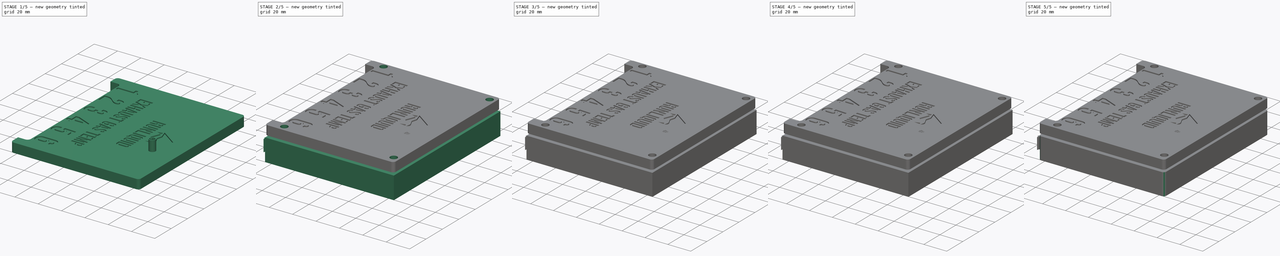
[diagram: build sequence overview — one tinted view per stage of 5, left to right]
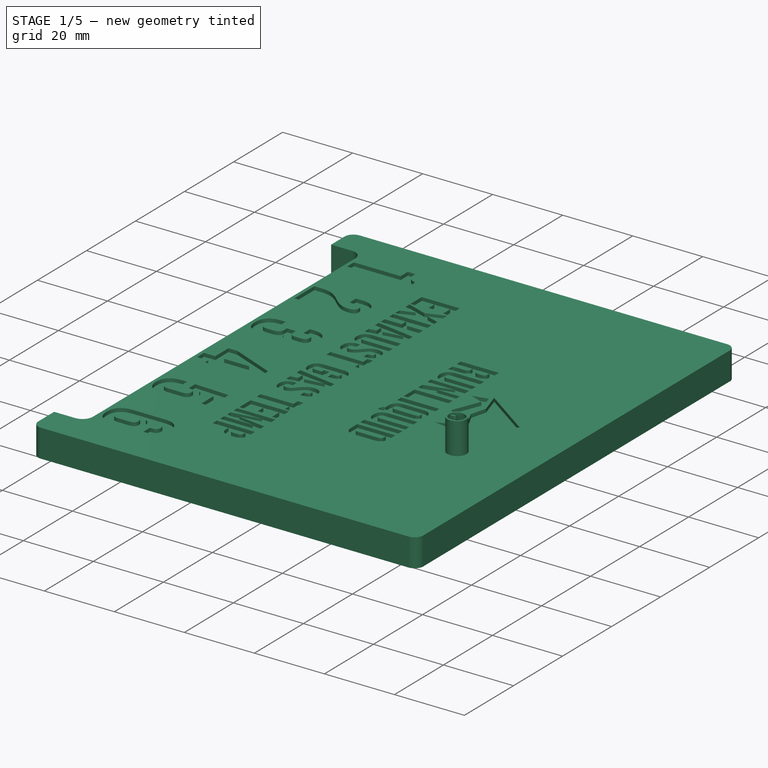
[diagram: stage 1 of 5 — iso view after this stage's code; geometry added in this stage tinted green]
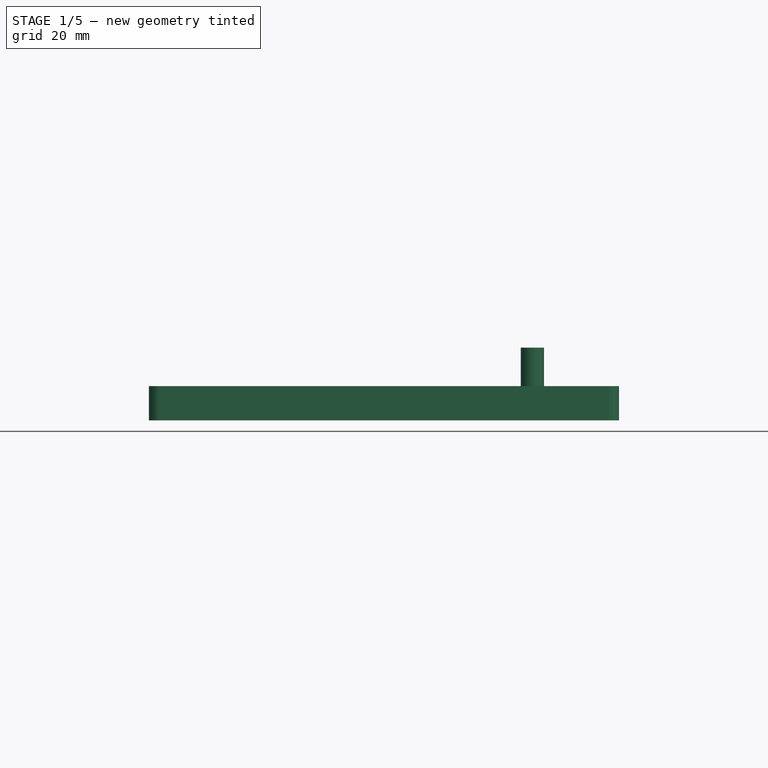
[diagram: stage 1 of 5 — front view after this stage's code; geometry added in this stage tinted green]
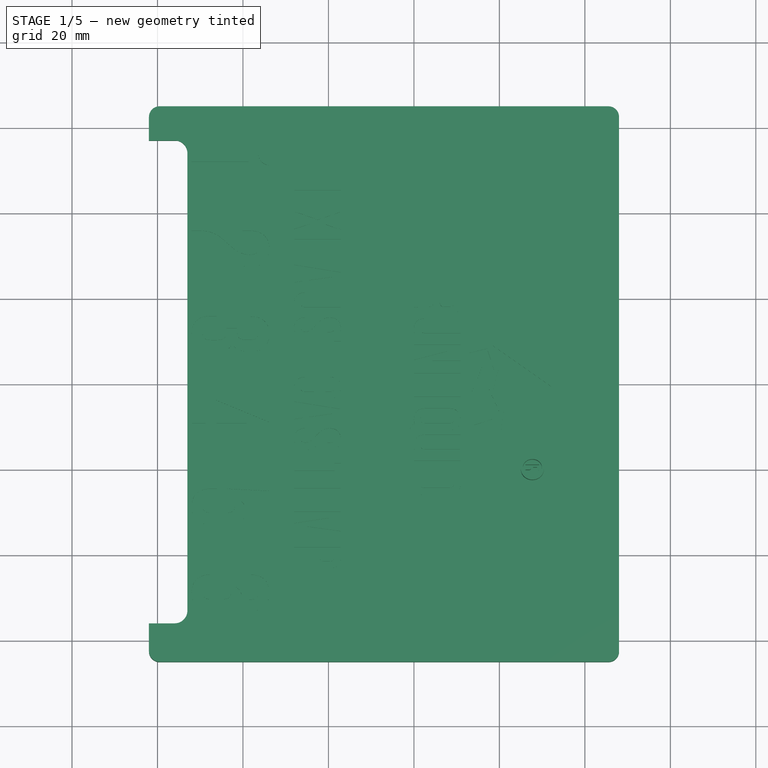
[diagram: stage 1 of 5 — top view after this stage's code; geometry added in this stage tinted green]
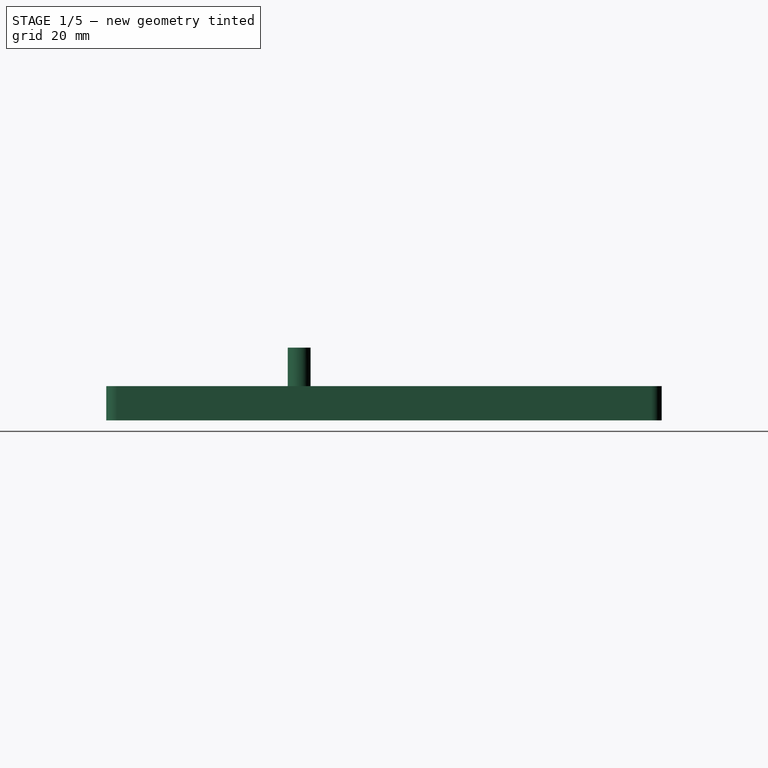
[diagram: stage 1 of 5 — right view after this stage's code; geometry added in this stage tinted green]
FCSTD DOCUMENT  (FreeCAD 0.18R16146 (Git))
Label: Exhaust_Gas_Temperatur_Electrical_Case
License: All rights reserved
LicenseURL: http://en.wikipedia.org/wiki/All_rights_reserved
objects: Part::Cut×33, Part::Cylinder×16, Part::Box×15, Part::Extrusion×5, Part::Part2DObjectPython×4, Part::Fillet×3, Part::MultiFuse×1, Sketcher::SketchObject×1, Part::Feature×1
note: 79 computed .brp shape members not serialized (recipe doc carries the construction recipe); baked Part::Feature solids carry a one-line shape summary decoded from their .brp

FEATURE [Part::Box] Box012  label="Deckel"
  AttacherType = Attacher::AttachEngine3D
  Height = 8
  Length = 110
  Placement = pos=(-2,-5,-2) rot=(0,0,1;0rad)
  Width = 130
FEATURE [Part::Fillet] Fillet001  label="Deckel001"
  Base = -> Box012
  Edges = 4 edges r=2.5: [Edge1,Edge3,Edge5,Edge7]
  Placement = pos=(0,0,21) rot=(0,0,1;0rad)
FEATURE [Part::Box] Box013  label="Deckel_innen"
  AttacherType = Attacher::AttachEngine3D
  Height = 21
  Length = 102
  Placement = pos=(-2,4,3) rot=(0,0,1;0rad)
  Width = 113
FEATURE [Part::Cut] Cut022
  Base = -> Fillet001
  Tool = -> Box013
FEATURE [Part::Part2DObjectPython] ShapeString  # Draft 2D object (typed FeaturePython)
  FontFile = <userpath>/Downloads/bebas_neue/BebasNeue-Regular.ttf
  Placement = pos=(-80,-78,3) rot=(0,0,1;0rad)
  Size = 10
  String = 123456
  Tracking = 10
FEATURE [Part::Extrusion] Extrude
  Base = -> ShapeString
  Dir = (0,0,1)
  DirMode = 2
  FaceMakerClass = Part::FaceMakerBullseye
  LengthFwd = 5
  LengthRev = 0
  Placement = pos=(86,37,23) rot=(0,0,-1;1.5708rad)
  Solid = false
  Symmetric = false
FEATURE [Part::Cut] Cut023
  Base = -> Cut022
  Tool = -> Extrude
FEATURE [Part::Part2DObjectPython] ShapeString001  # Draft 2D object (typed FeaturePython)
  FontFile = <userpath>/Downloads/bebas_neue/BebasNeue-Regular.ttf
  Placement = pos=(-94,4,0) rot=(0,0,1;0rad)
  Size = 6
  String = RUNLIQUID
  Tracking = 0
FEATURE [Part::Extrusion] Extrude001
  Base = -> ShapeString001
  Dir = (0,0,1)
  DirMode = 2
  FaceMakerClass = Part::FaceMakerBullseye
  LengthFwd = 10
  LengthRev = 0
  Placement = pos=(56,-12,26) rot=(0,0,-1;1.5708rad)
  Solid = false
  Symmetric = false
FEATURE [Part::Part2DObjectPython] ShapeString002  # Draft 2D object (typed FeaturePython)
  FontFile = <userpath>/Downloads/bebas_neue/BebasNeue-Regular.ttf
  Placement = pos=(-94,4,0) rot=(0,0,1;0rad)
  Size = 6
  String = EXHAUST GAS TEMP 
  Tracking = 0
FEATURE [Part::Extrusion] Extrude002
  Base = -> ShapeString002
  Dir = (0,0,1)
  DirMode = 2
  FaceMakerClass = Part::FaceMakerBullseye
  LengthFwd = 10
  LengthRev = 0
  Placement = pos=(28,12,26) rot=(0,0,-1;1.5708rad)
  Solid = false
  Symmetric = false
FEATURE [Part::Box] Box014  label="Würfel"
  AttacherType = Attacher::AttachEngine3D
  Height = 10
  Length = 10
  Placement = pos=(-3,4,18) rot=(0,0,1;0rad)
  Width = 113
FEATURE [Part::Fillet] Fillet002
  Base = -> Box014
  Edges = 2 edges r=3: [Edge5,Edge7]
FEATURE [Part::Cut] Cut024
  Base = -> Cut023
  Tool = -> Fillet002
FEATURE [Part::Cut] Cut025
  Base = -> Cut024
  Tool = -> Extrude002
FEATURE [Part::Cut] Cut026
  Base = -> Cut025
  Tool = -> Extrude001
FEATURE [Part::Feature] Extrude004
  Placement = pos=(82.2483,59.4023,16) rot=(0,0,1;4.71239rad)
  shape: bbox 19.3 x 20 x 20 mm, 20 faces, 2 solids (baked)
FEATURE [Part::Part2DObjectPython] ShapeString003  # Draft 2D object (typed FeaturePython)
  FontFile = <userpath>/Downloads/bebas_neue/BebasNeue-Regular.ttf
  Placement = pos=(135,133,0) rot=(0,0,1;0rad)
  Size = 3
  String = ®
  Tracking = 0
FEATURE [Part::Cut] Cut027
  Base = -> Cut026
  Tool = -> Extrude004
FEATURE [Part::Extrusion] Extrude005
  Base = -> ShapeString003
  Dir = (0,0,1)
  DirMode = 2
  FaceMakerClass = Part::FaceMakerBullseye
  LengthFwd = 10
  LengthRev = 0
  Placement = pos=(-48,178,26) rot=(0,0,1;4.71239rad)
  Solid = false
  Symmetric = false
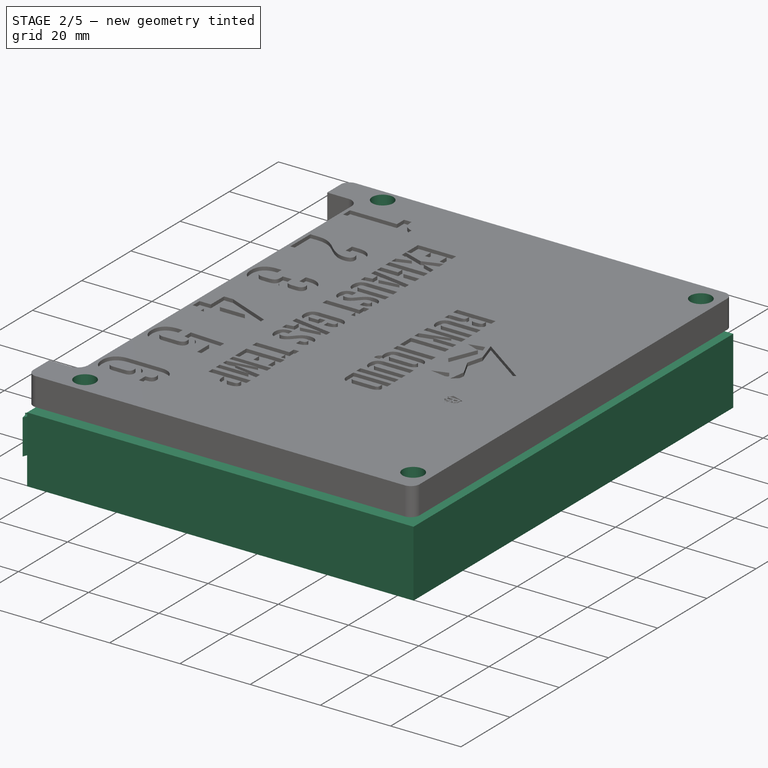
[diagram: stage 2 of 5 — iso view after this stage's code; geometry added in this stage tinted green]
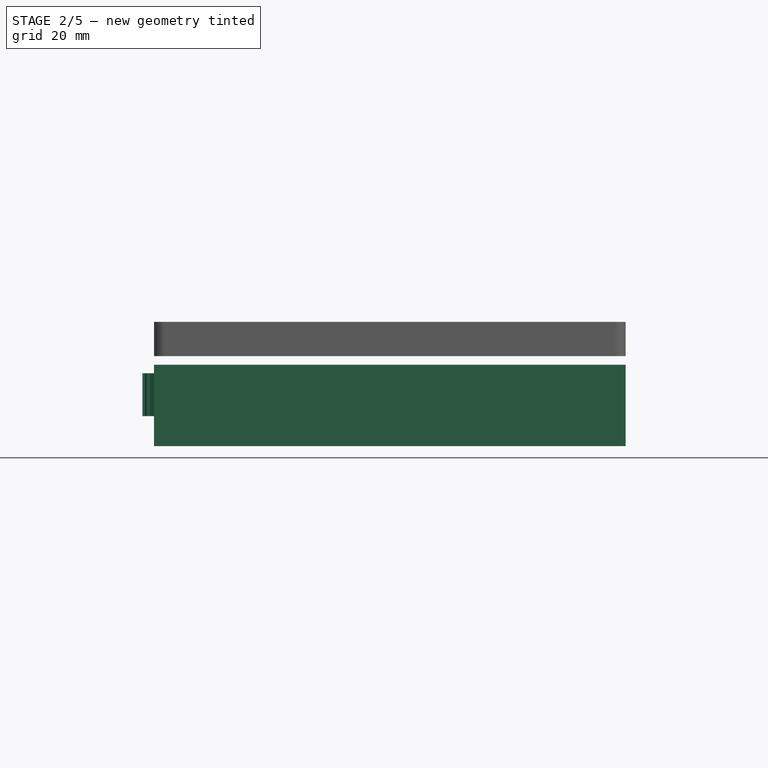
[diagram: stage 2 of 5 — front view after this stage's code; geometry added in this stage tinted green]
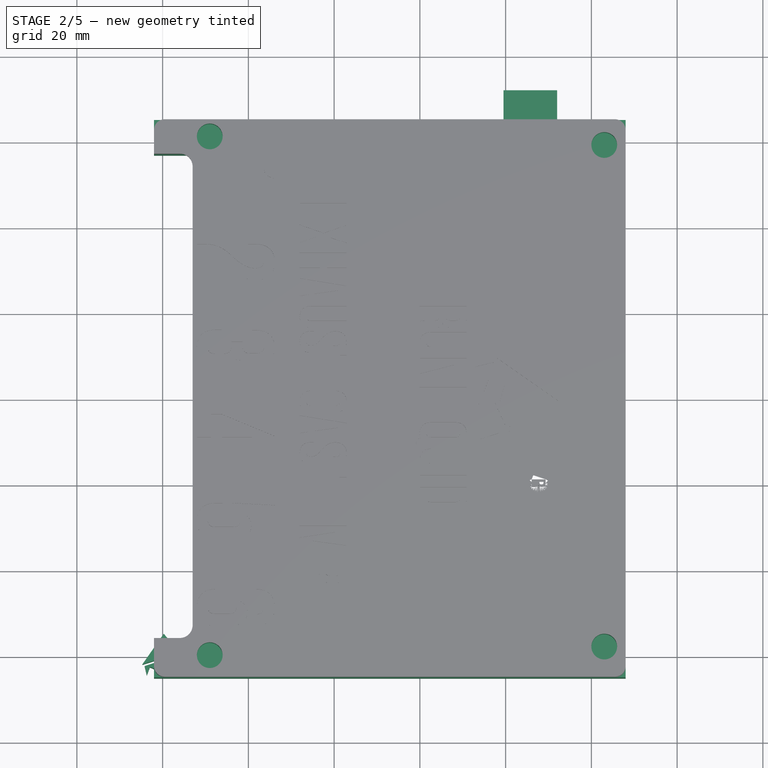
[diagram: stage 2 of 5 — top view after this stage's code; geometry added in this stage tinted green]
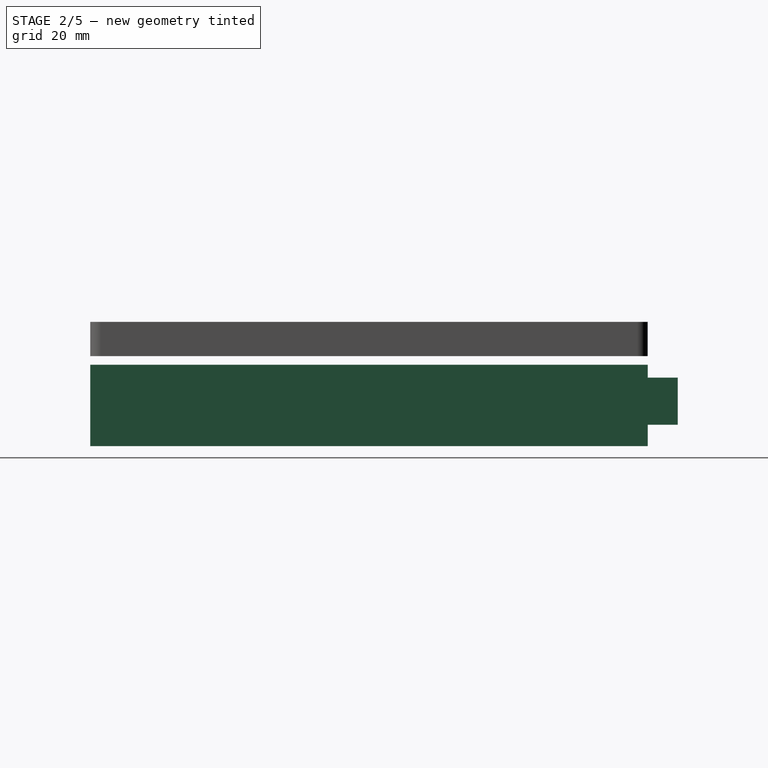
[diagram: stage 2 of 5 — right view after this stage's code; geometry added in this stage tinted green]
FEATURE [Part::Box] Box008  label="Usbport"
  AttacherType = Attacher::AttachEngine3D
  Height = 11
  Length = 20
  Placement = pos=(92,112,3) rot=(0,0,1;1.5708rad)
  Width = 12.5
FEATURE [Part::Box] Box010  label="Wandung"
  AttacherType = Attacher::AttachEngine3D
  Height = 19
  Length = 110
  Placement = pos=(-2,-5,-2) rot=(0,0,1;0rad)
  Width = 130
FEATURE [Part::Box] Box011  label="Wandung001"
  AttacherType = Attacher::AttachEngine3D
  Height = 21
  Length = 102
  Placement = pos=(-2,4,-2) rot=(0,0,1;0rad)
  Width = 113
FEATURE [Part::Cut] Cut019  label="Wandung002"
  Base = -> Box010
  Tool = -> Box011
FEATURE [Sketcher::SketchObject] Sketch011  label="firmenlogo"
  MapMode = 5
  Placement = pos=(0,0,5) rot=(0,0,1;0rad)
  sketch-geometry (16):
    g0: LineSegment StartX=-0.247258 StartY=4.74203 StartZ=0 EndX=-5.2483 EndY=-2.40232 EndZ=0
    g1: LineSegment StartX=-5.2483 StartY=-2.40232 StartZ=0 EndX=-2.23261 EndY=-1.45598 EndZ=0
    g2: LineSegment StartX=-2.23261 StartY=-1.45598 StartZ=0 EndX=0 EndY=-2.04166 EndZ=0
    g3: LineSegment StartX=0 StartY=-2.04166 StartZ=0 EndX=2.47377 EndY=-0.82846 EndZ=0
    g4: LineSegment StartX=2.47377 StartY=-0.82846 StartZ=0 EndX=4.75375 EndY=-1.16314 EndZ=0
    g5: LineSegment StartX=4.75375 StartY=-1.16314 StartZ=0 EndX=-0.247258 EndY=4.74203 EndZ=0
    g6: LineSegment StartX=-4.70084 StartY=-2.79468 StartZ=0 EndX=-2.29536 EndY=-1.99982 EndZ=0
    g7: LineSegment StartX=-2.29536 StartY=-1.99982 StartZ=0 EndX=0 EndY=-2.60643 EndZ=0
    g8: LineSegment StartX=0 StartY=-2.60643 StartZ=0 EndX=2.59927 EndY=-1.39322 EndZ=0
    g9: LineSegment StartX=2.59927 StartY=-1.39322 StartZ=0 EndX=4.62825 EndY=-1.68607 EndZ=0
    g10: LineSegment StartX=4.62825 StartY=-1.68607 StartZ=0 EndX=4.23082 EndY=-4.2798 EndZ=0
    g11: LineSegment StartX=4.23082 StartY=-4.2798 StartZ=0 EndX=3.54055 EndY=-2.14625 EndZ=0
    g12: LineSegment StartX=3.54055 StartY=-2.14625 StartZ=0 EndX=0.340213 EndY=-4.55173 EndZ=0
    g13: LineSegment StartX=0.340213 StartY=-4.55173 StartZ=0 EndX=-3.48764 EndY=-3.00385 EndZ=0
    g14: LineSegment StartX=-3.48764 StartY=-3.00385 StartZ=0 EndX=-4.19883 EndY=-4.90732 EndZ=0
    g15: LineSegment StartX=-4.19883 StartY=-4.90732 StartZ=0 EndX=-4.70084 EndY=-2.79468 EndZ=0
  constraints (18):
    c: Coincident(g1,g0)
    c: Coincident(g2,g1)
    c: PointOnObject(g2,g-2)
    c: Coincident(g3,g2)
    c: Coincident(g4,g3)
    c: Coincident(g5,g4)
    c: Coincident(g5,g0)
    c: Coincident(g7,g6)
    c: PointOnObject(g7,g-2)
    c: Coincident(g8,g7)
    c: Coincident(g9,g8)
    c: Coincident(g10,g9)
    c: Coincident(g11,g10)
    c: Coincident(g12,g11)
    c: Coincident(g13,g12)
    c: Coincident(g14,g13)
    c: Coincident(g15,g14)
    c: Coincident(g15,g6)
FEATURE [Part::Extrusion] Extrude003
  Base = -> Sketch011
  Dir = (0,0,1)
  DirMode = 2
  FaceMakerClass = Part::FaceMakerBullseye
  LengthFwd = 10
  LengthRev = 0
  Placement = pos=(0.52013,0.459354,0) rot=(0,0,1;0rad)
  Solid = true
  Symmetric = false
FEATURE [Part::Cylinder] Cylinder012  label="Zylinder012"
  Angle = 360
  AttacherType = Attacher::AttachEngine3D
  Height = 50
  Placement = pos=(11,0,0) rot=(0,0,1;0rad)
  Radius = 3
FEATURE [Part::Cylinder] Cylinder013  label="Zylinder013"
  Angle = 360
  AttacherType = Attacher::AttachEngine3D
  Height = 50
  Placement = pos=(11,121,0) rot=(0,0,1;0rad)
  Radius = 3
FEATURE [Part::Cylinder] Cylinder014  label="Zylinder014"
  Angle = 360
  AttacherType = Attacher::AttachEngine3D
  Height = 50
  Placement = pos=(103,119,0) rot=(0,0,1;0rad)
  Radius = 3
FEATURE [Part::Cylinder] Cylinder015  label="Zylinder015"
  Angle = 360
  AttacherType = Attacher::AttachEngine3D
  Height = 50
  Placement = pos=(103,2,0) rot=(0,0,1;0rad)
  Radius = 3
FEATURE [Part::Cut] Cut028
  Base = -> Cut027
  Tool = -> Extrude005
FEATURE [Part::Cut] Cut029
  Base = -> Cut028
  Tool = -> Cylinder012
FEATURE [Part::Cut] Cut030
  Base = -> Cut029
  Tool = -> Cylinder013
FEATURE [Part::Cut] Cut031
  Base = -> Cut030
  Tool = -> Cylinder014
FEATURE [Part::Cut] Cut032
  Base = -> Cut031
  Tool = -> Cylinder015
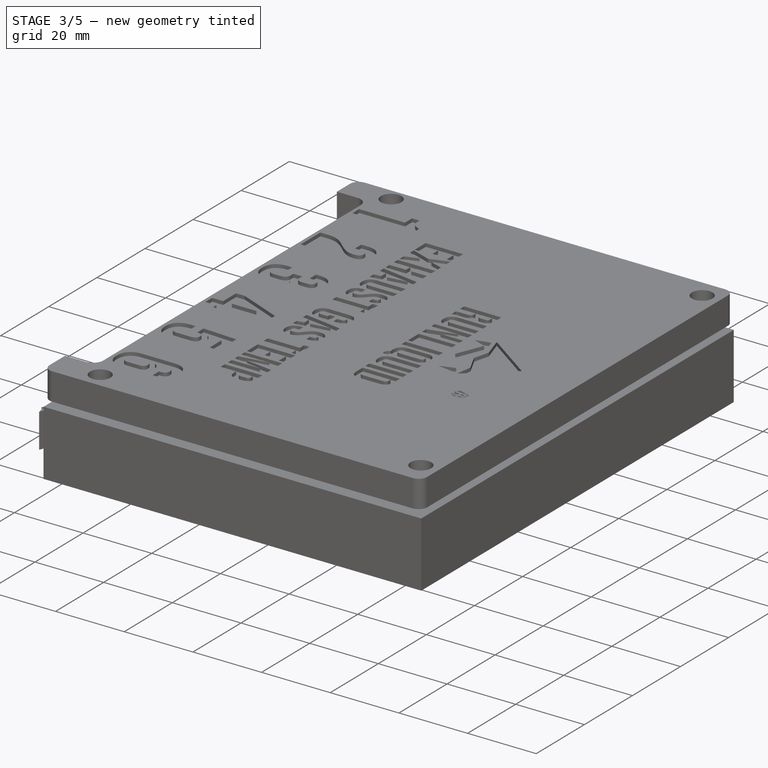
[diagram: stage 3 of 5 — iso view after this stage's code; geometry added in this stage tinted green]
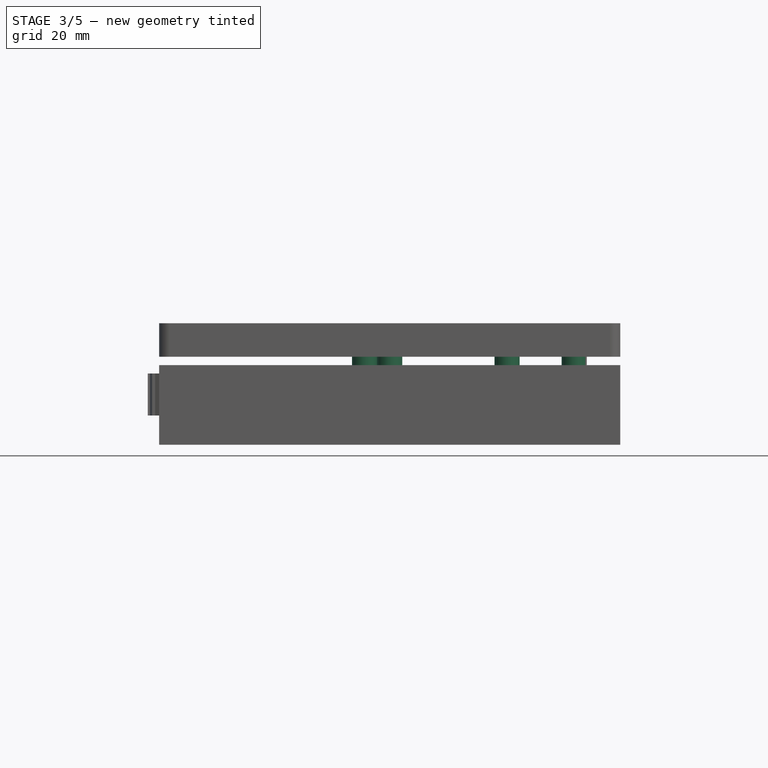
[diagram: stage 3 of 5 — front view after this stage's code; geometry added in this stage tinted green]
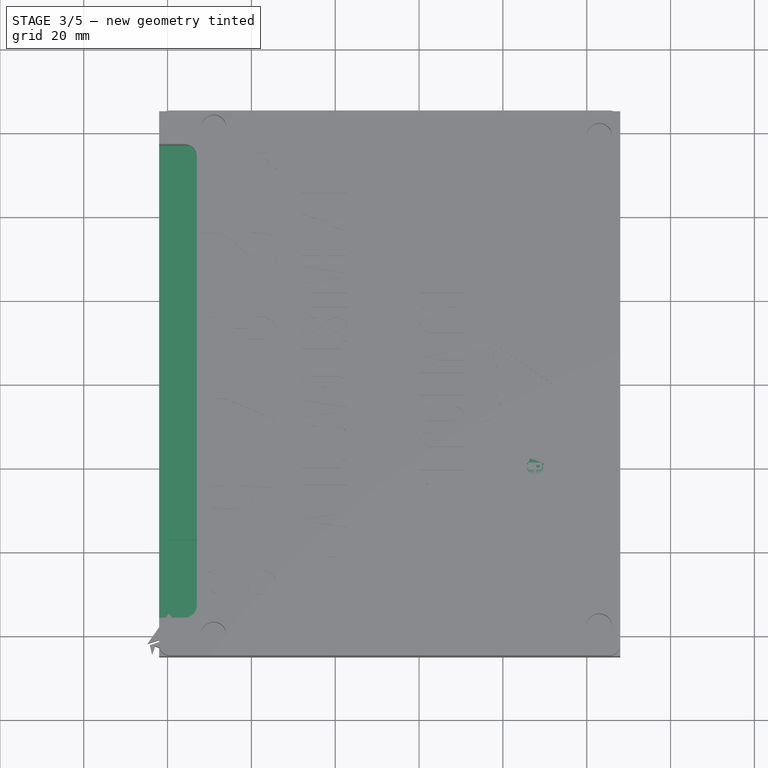
[diagram: stage 3 of 5 — top view after this stage's code; geometry added in this stage tinted green]
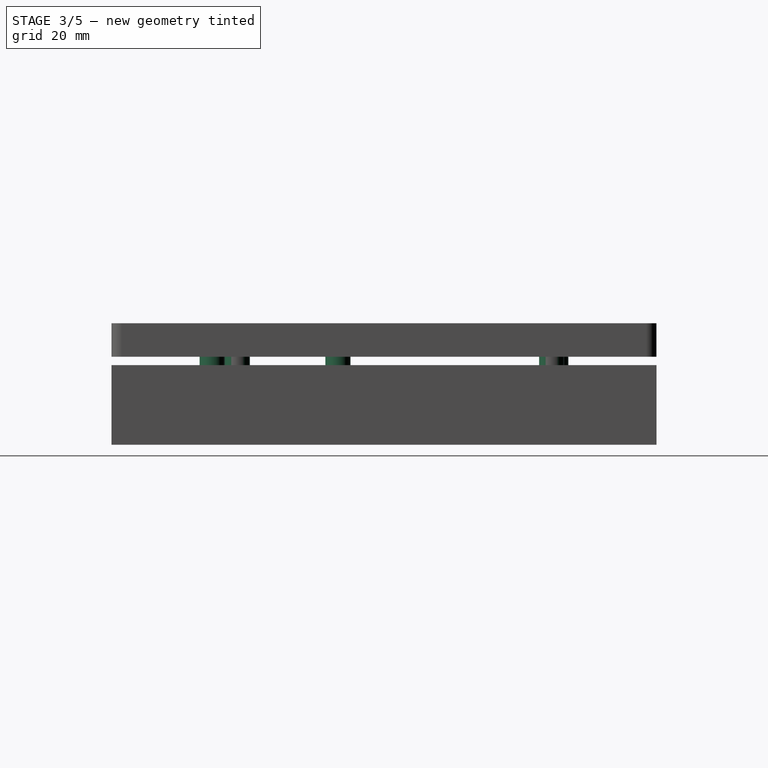
[diagram: stage 3 of 5 — right view after this stage's code; geometry added in this stage tinted green]
FEATURE [Part::Box] Box  label="Boden"
  AttacherType = Attacher::AttachEngine3D
  Height = 4
  Length = 110
  Placement = pos=(-2,-5,-2) rot=(0,0,1;0rad)
  Width = 130
FEATURE [Part::Box] Box001  label="Chip006"
  AttacherType = Attacher::AttachEngine3D
  Height = 10
  Length = 39
  Placement = pos=(0,6,0) rot=(0,0,1;0rad)
  Width = 17
FEATURE [Part::Box] Box007  label="Mega256_Chip"
  AttacherType = Attacher::AttachEngine3D
  Height = 10
  Length = 102
  Placement = pos=(45,115,0) rot=(0,0,-1;1.5708rad)
  Width = 54
FEATURE [Part::Box] Box009  label="DCPort"
  AttacherType = Attacher::AttachEngine3D
  Height = 12
  Length = 20
  Placement = pos=(62,112,3) rot=(0,0,1;1.5708rad)
  Width = 10
FEATURE [Part::Cylinder] Cylinder  label="Zylinder"
  Angle = 360
  AttacherType = Attacher::AttachEngine3D
  Height = 20
  Placement = pos=(17,14,0) rot=(0,0,1;0rad)
  Radius = 3
FEATURE [Part::Cut] Cut
  Base = -> Box001
  Tool = -> Cylinder
FEATURE [Part::Cylinder] Cylinder006  label="Zylinder006"
  Angle = 360
  AttacherType = Attacher::AttachEngine3D
  Height = 20
  Placement = pos=(97,100,0) rot=(0,0,1;0rad)
  Radius = 3
FEATURE [Part::Cylinder] Cylinder007  label="Zylinder007"
  Angle = 360
  AttacherType = Attacher::AttachEngine3D
  Height = 20
  Placement = pos=(47,101,0) rot=(0,0,1;0rad)
  Radius = 3
FEATURE [Part::Cylinder] Cylinder008  label="Zylinder008"
  Angle = 360
  AttacherType = Attacher::AttachEngine3D
  Height = 20
  Placement = pos=(97,25,0) rot=(0,0,1;0rad)
  Radius = 3
FEATURE [Part::Cylinder] Cylinder009  label="Zylinder009"
  Angle = 360
  AttacherType = Attacher::AttachEngine3D
  Height = 20
  Placement = pos=(47,19,0) rot=(0,0,1;0rad)
  Radius = 3
FEATURE [Part::Cylinder] Cylinder010  label="Zylinder010"
  Angle = 360
  AttacherType = Attacher::AttachEngine3D
  Height = 20
  Placement = pos=(53,49,0) rot=(0,0,1;0rad)
  Radius = 3
FEATURE [Part::Cylinder] Cylinder011  label="Zylinder011"
  Angle = 360
  AttacherType = Attacher::AttachEngine3D
  Height = 20
  Placement = pos=(81,49,0) rot=(0,0,1;0rad)
  Radius = 3
FEATURE [Part::Cut] Cut012
  Base = -> Box
  Tool = -> Cut
FEATURE [Part::Cut] Cut020
  Base = -> Cut019
  Tool = -> Box008
FEATURE [Part::Cut] Cut021  label="Wandung003"
  Base = -> Cut020
  Tool = -> Box009
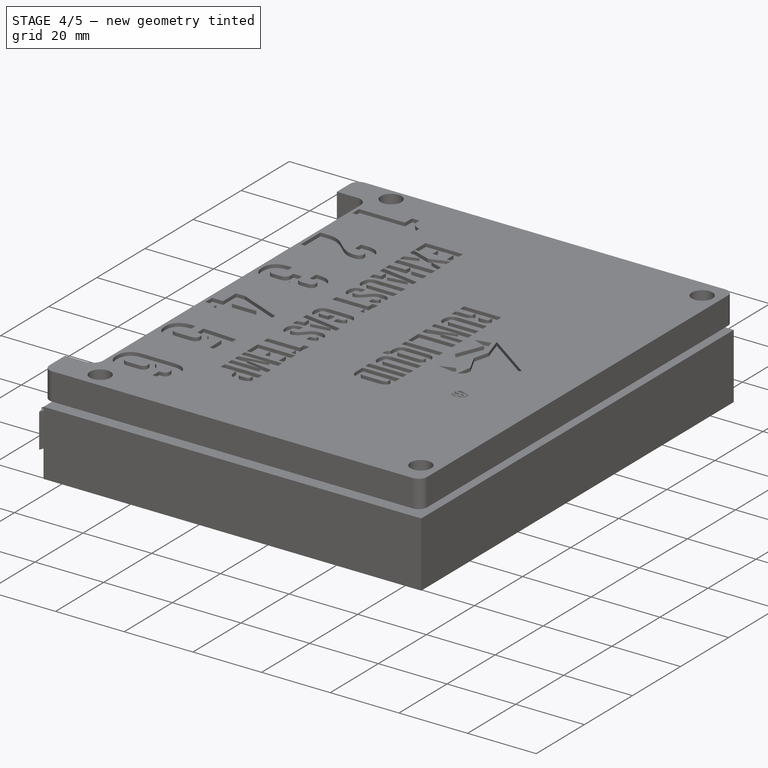
[diagram: stage 4 of 5 — iso view after this stage's code; geometry added in this stage tinted green]
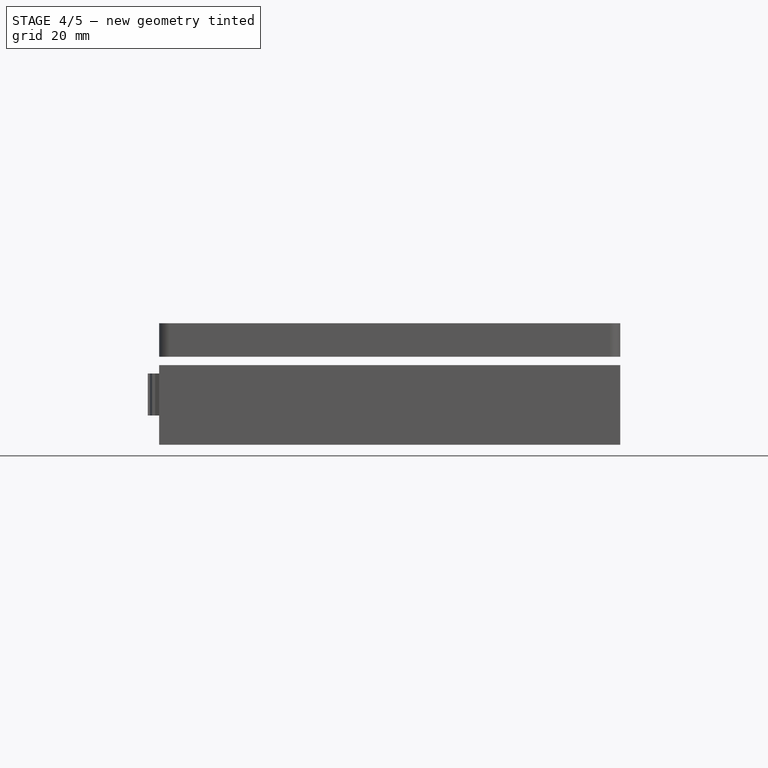
[diagram: stage 4 of 5 — front view after this stage's code; geometry added in this stage tinted green]
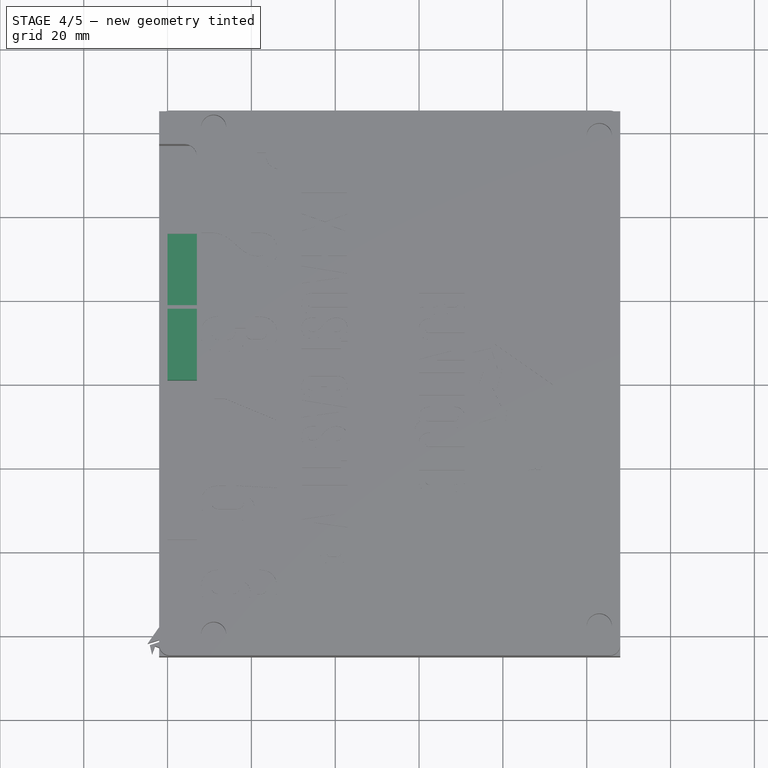
[diagram: stage 4 of 5 — top view after this stage's code; geometry added in this stage tinted green]
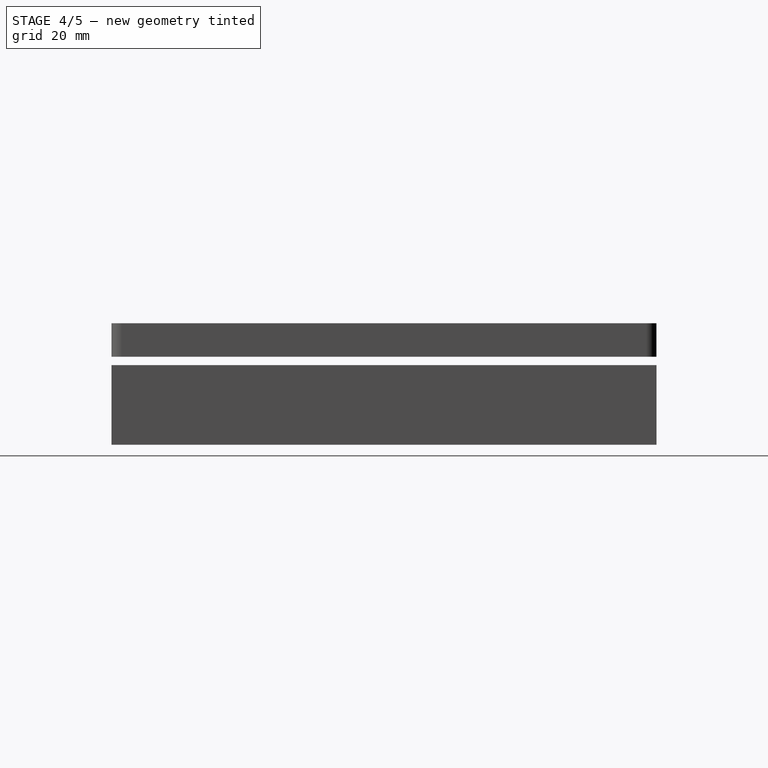
[diagram: stage 4 of 5 — right view after this stage's code; geometry added in this stage tinted green]
FEATURE [Part::Box] Box002  label="Chip001"
  AttacherType = Attacher::AttachEngine3D
  Height = 10
  Length = 39
  Placement = pos=(0,61,0) rot=(0,0,1;0rad)
  Width = 17
FEATURE [Part::Box] Box003  label="Chip002"
  AttacherType = Attacher::AttachEngine3D
  Height = 10
  Length = 39
  Placement = pos=(0,79,0) rot=(0,0,1;0rad)
  Width = 17
FEATURE [Part::Cylinder] Cylinder004  label="Zylinder004"
  Angle = 360
  AttacherType = Attacher::AttachEngine3D
  Height = 20
  Placement = pos=(17,88,0) rot=(0,0,1;0rad)
  Radius = 3
FEATURE [Part::Cut] Cut004
  Base = -> Box003
  Tool = -> Cylinder004
FEATURE [Part::Cylinder] Cylinder005  label="Zylinder005"
  Angle = 360
  AttacherType = Attacher::AttachEngine3D
  Height = 20
  Placement = pos=(17,70,0) rot=(0,0,1;0rad)
  Radius = 3
FEATURE [Part::Cut] Cut005
  Base = -> Box002
  Tool = -> Cylinder005
FEATURE [Part::Cut] Cut006
  Base = -> Box007
  Tool = -> Cylinder006
FEATURE [Part::Cut] Cut007
  Base = -> Cut006
  Tool = -> Cylinder007
FEATURE [Part::Cut] Cut008
  Base = -> Cut007
  Tool = -> Cylinder008
FEATURE [Part::Cut] Cut009
  Base = -> Cut008
  Tool = -> Cylinder009
FEATURE [Part::Cut] Cut010
  Base = -> Cut009
  Tool = -> Cylinder010
FEATURE [Part::Cut] Cut011
  Base = -> Cut010
  Tool = -> Cylinder011
FEATURE [Part::Cut] Cut013
  Base = -> Cut012
  Tool = -> Cut011
FEATURE [Part::Cut] Cut014
  Base = -> Cut013
  Tool = -> Cut004
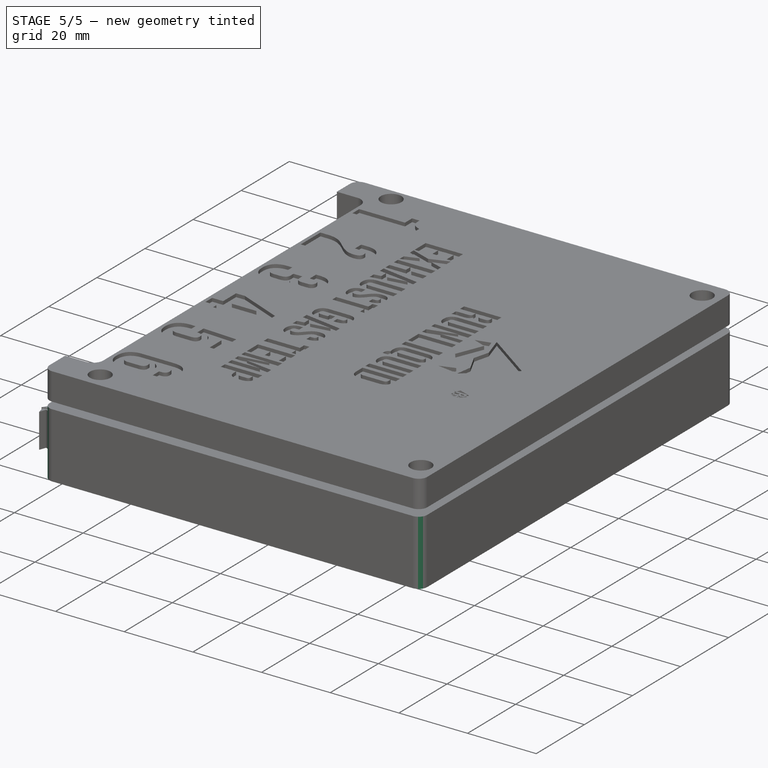
[diagram: stage 5 of 5 — iso view after this stage's code; geometry added in this stage tinted green]
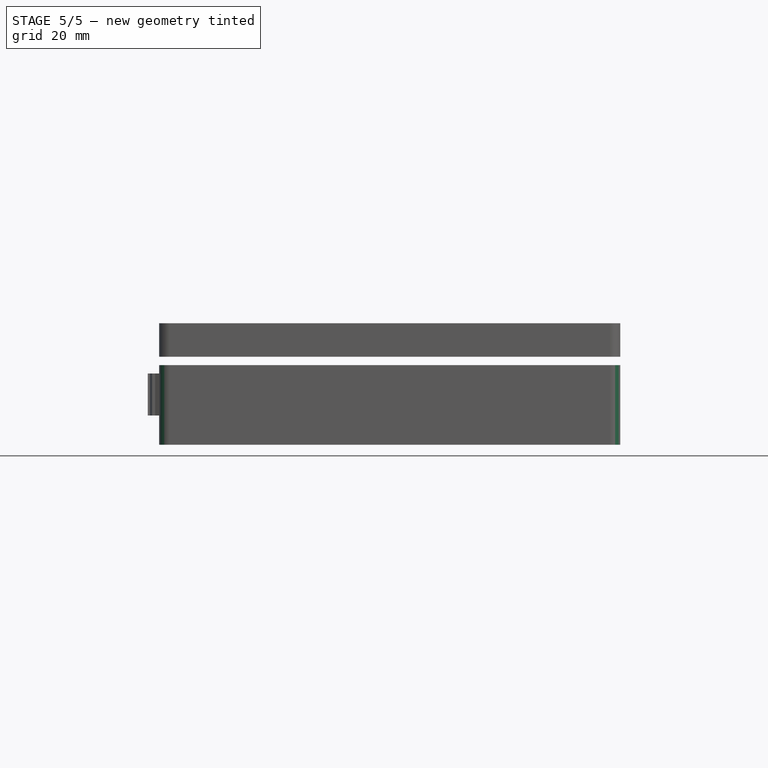
[diagram: stage 5 of 5 — front view after this stage's code; geometry added in this stage tinted green]
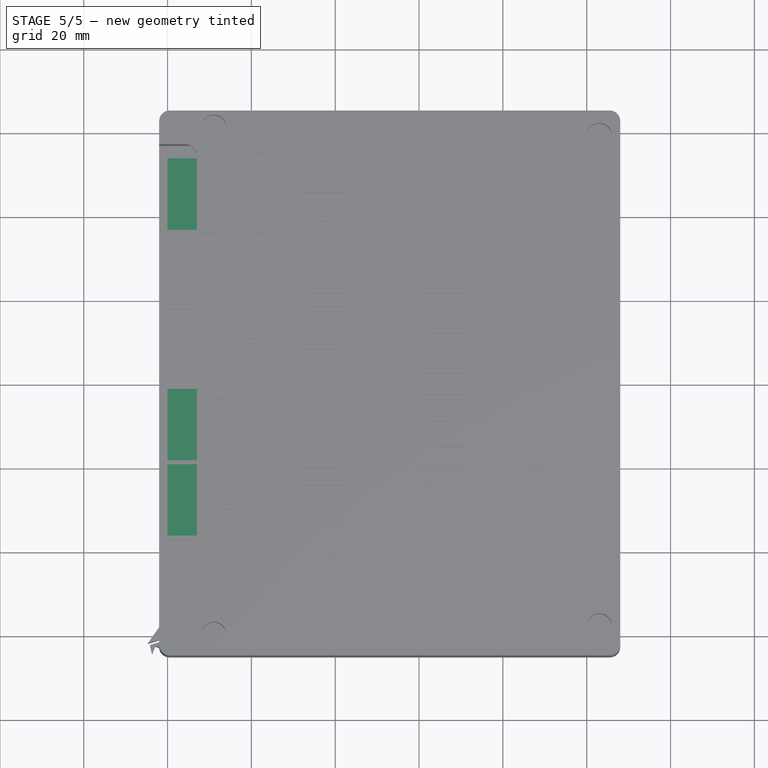
[diagram: stage 5 of 5 — top view after this stage's code; geometry added in this stage tinted green]
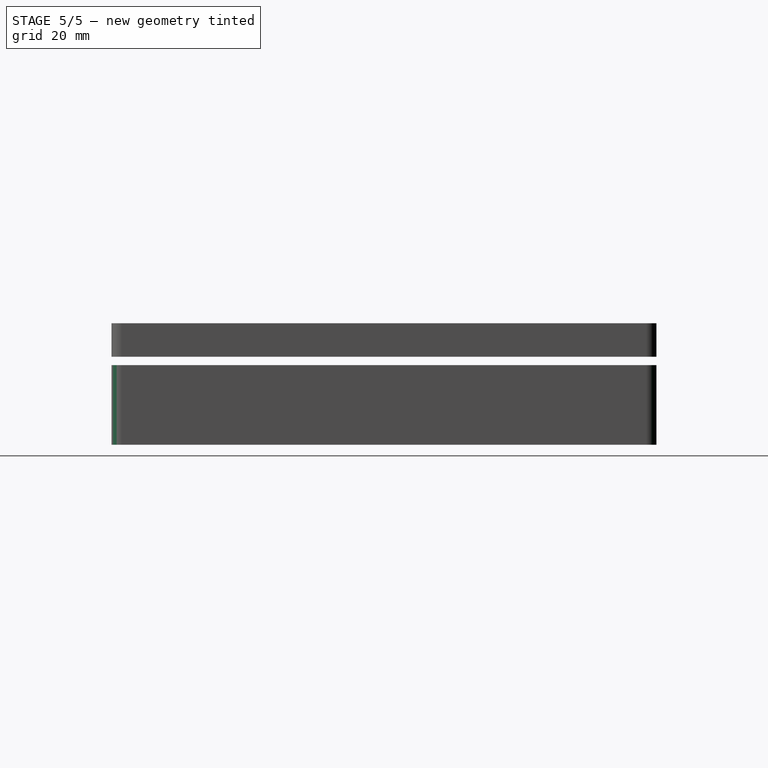
[diagram: stage 5 of 5 — right view after this stage's code; geometry added in this stage tinted green]
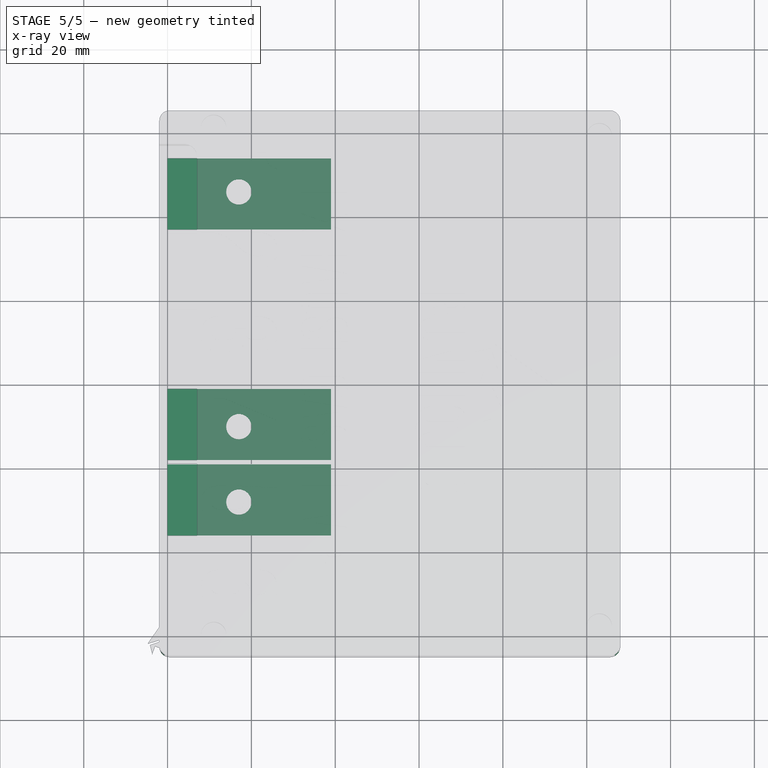
[diagram: stage 5 of 5 — x-ray composite at the top view; earlier geometry ghosted, this stage's added geometry solid]
FEATURE [Part::Box] Box004  label="Chip003"
  AttacherType = Attacher::AttachEngine3D
  Height = 10
  Length = 39
  Placement = pos=(0,97,0) rot=(0,0,1;0rad)
  Width = 17
FEATURE [Part::Box] Box005  label="Chip004"
  AttacherType = Attacher::AttachEngine3D
  Height = 10
  Length = 39
  Placement = pos=(0,42,0) rot=(0,0,1;0rad)
  Width = 17
FEATURE [Part::Box] Box006  label="Chip005"
  AttacherType = Attacher::AttachEngine3D
  Height = 10
  Length = 39
  Placement = pos=(0,24,0) rot=(0,0,1;0rad)
  Width = 17
FEATURE [Part::Cylinder] Cylinder001  label="Zylinder001"
  Angle = 360
  AttacherType = Attacher::AttachEngine3D
  Height = 20
  Placement = pos=(17,32,0) rot=(0,0,1;0rad)
  Radius = 3
FEATURE [Part::Cut] Cut001
  Base = -> Box006
  Tool = -> Cylinder001
FEATURE [Part::Cylinder] Cylinder002  label="Zylinder002"
  Angle = 360
  AttacherType = Attacher::AttachEngine3D
  Height = 20
  Placement = pos=(17,50,0) rot=(0,0,1;0rad)
  Radius = 3
FEATURE [Part::Cut] Cut002
  Base = -> Box005
  Tool = -> Cylinder002
FEATURE [Part::Cylinder] Cylinder003  label="Zylinder003"
  Angle = 360
  AttacherType = Attacher::AttachEngine3D
  Height = 20
  Placement = pos=(17,106,0) rot=(0,0,1;0rad)
  Radius = 3
FEATURE [Part::Cut] Cut003
  Base = -> Box004
  Tool = -> Cylinder003
FEATURE [Part::Cut] Cut015
  Base = -> Cut014
  Tool = -> Cut005
FEATURE [Part::Cut] Cut016
  Base = -> Cut015
  Tool = -> Cut003
FEATURE [Part::Cut] Cut017
  Base = -> Cut016
  Tool = -> Cut002
FEATURE [Part::Cut] Cut018  label="Base"
  Base = -> Cut017
  Tool = -> Cut001
FEATURE [Part::MultiFuse] Fusion
  Shapes = -> [Cut018,Cut021]
FEATURE [Part::Fillet] Fillet  label="Base001"
  Base = -> Fusion
  Edges = 4 edges r=2.5: [Edge10,Edge22,Edge75,Edge86]
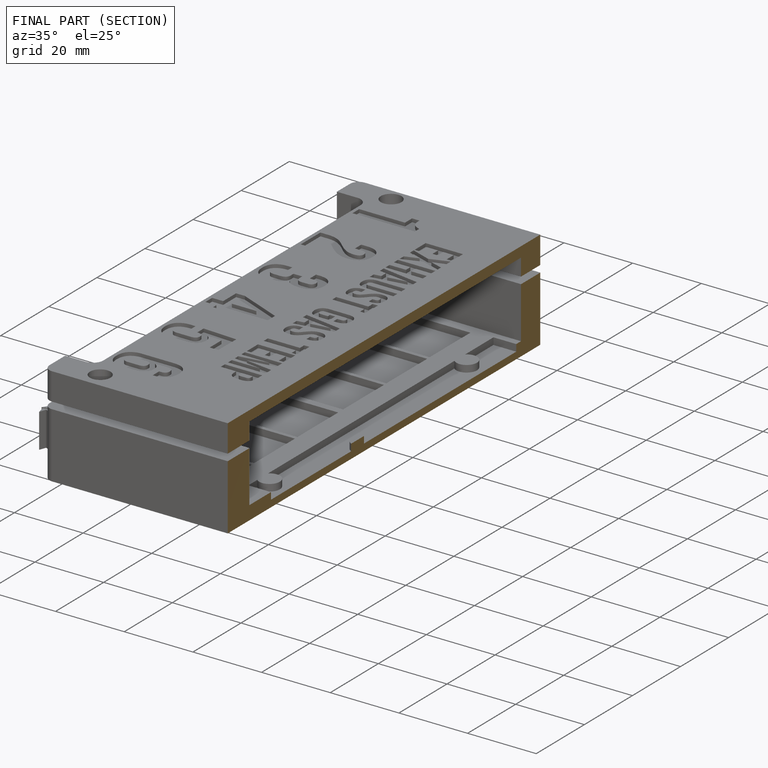
[diagram: finished part — half-section view (interior)]
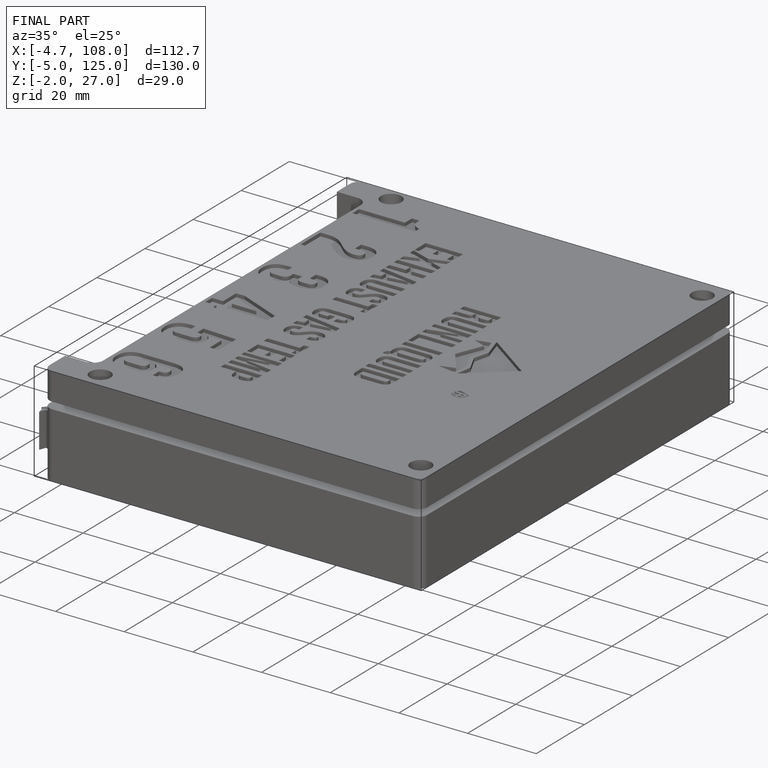
[diagram: finished part — iso view with bounding-box wireframe]
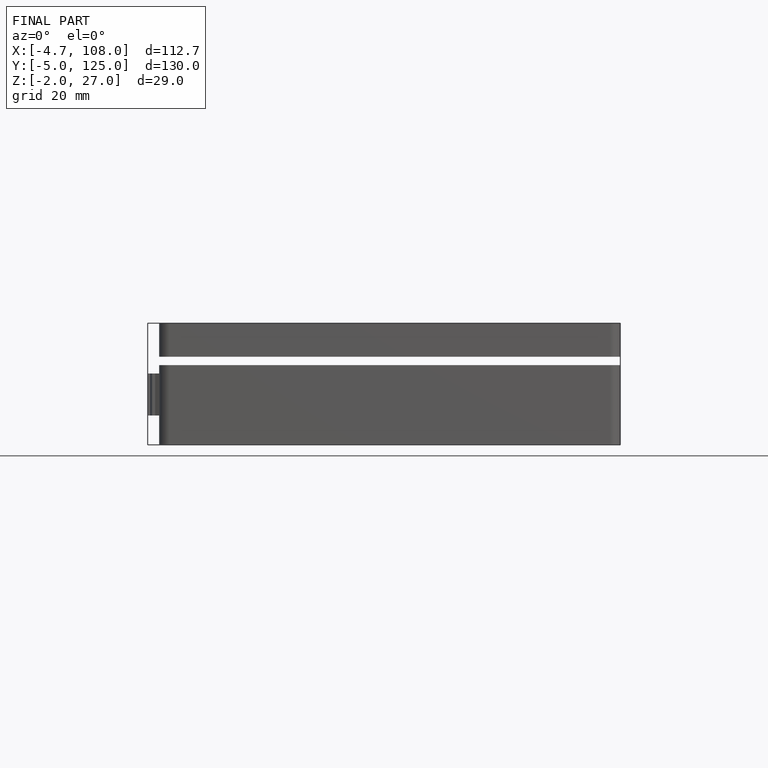
[diagram: finished part — front view with bounding-box wireframe]
